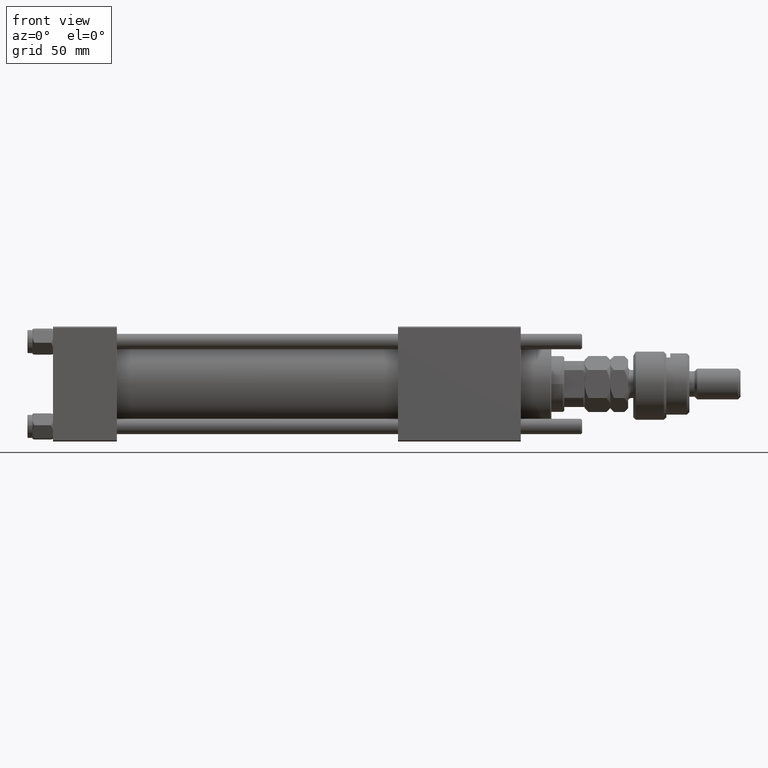
[diagram: clean part render]
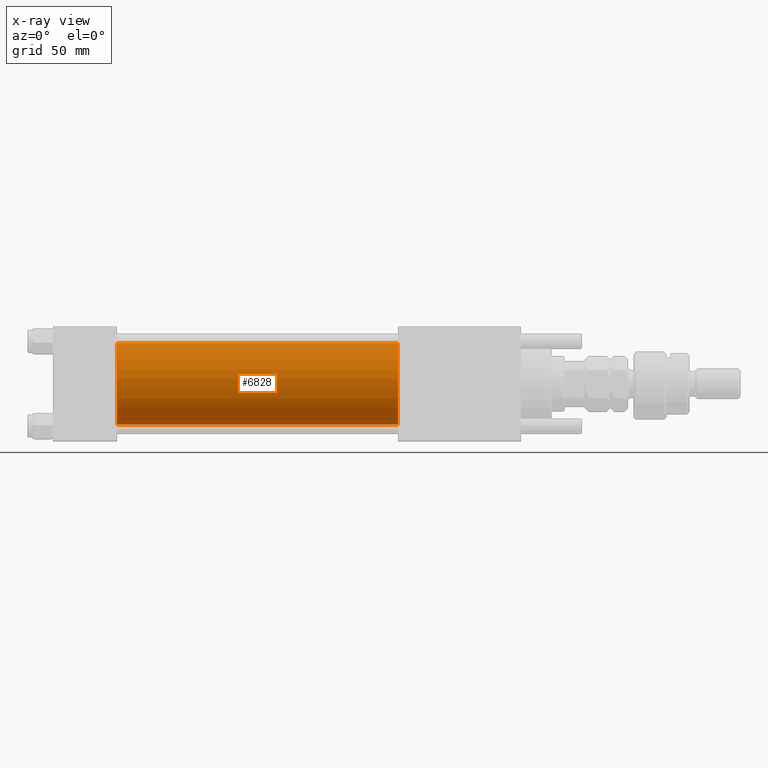
[diagram: x-ray — body ghosted, one internal face saturated and labeled with its STEP entity id]
A machine part, front view, then the same camera in x-ray: the body is ghosted and one INTERNAL B-rep face — a face not visible from any outside direction — is saturated and labeled: STEP entity #6828.
In plain terms, the highlighted cylindrical surface (partial cylindrical patch) has radius 16 mm, axis along (-1, -0, -0).
Its self-contained STEP definition (entity closure, byte-faithful):
#2209 = AXIS2_PLACEMENT_3D ( 'NONE', #55172, #53770, #35670 ) ;
#2289 = AXIS2_PLACEMENT_3D ( 'NONE', #56894, #6554, #28878 ) ;
#3612 = CARTESIAN_POINT ( 'NONE',  ( 25.00000000000000000, -2.602085213965210642E-15, 16.00000000000000000 ) ) ;
#5788 = LINE ( 'NONE', #19653, #50963 ) ;
#6011 = DIRECTION ( 'NONE',  ( 0.000000000000000000, 0.000000000000000000, 1.000000000000000000 ) ) ;
#6554 = DIRECTION ( 'NONE',  ( 1.000000000000000000, 0.000000000000000000, 0.000000000000000000 ) ) ;
#6828 = ADVANCED_FACE ( 'NONE', ( #19590 ), #43980, .F. ) ;
#11181 = DIRECTION ( 'NONE',  ( -1.000000000000000000, -0.000000000000000000, -0.000000000000000000 ) ) ;
#11493 = EDGE_LOOP ( 'NONE', ( #18176, #47231, #17699, #13474 ) ) ;
#11706 = CARTESIAN_POINT ( 'NONE',  ( 135.0000000000000000, -2.602085213965210642E-15, 0.000000000000000000 ) ) ;
#13474 = ORIENTED_EDGE ( 'NONE', *, *, #15254, .F. ) ;
#13657 = VERTEX_POINT ( 'NONE', #30421 ) ;
#14177 = CARTESIAN_POINT ( 'NONE',  ( 135.0000000000000000, -6.426503353294456087E-16, -16.00000000000000000 ) ) ;
#15254 = EDGE_CURVE ( 'NONE', #59424, #46335, #5788, .T. ) ;
#17699 = ORIENTED_EDGE ( 'NONE', *, *, #41600, .F. ) ;
#18176 = ORIENTED_EDGE ( 'NONE', *, *, #48951, .T. ) ;
#19590 = FACE_OUTER_BOUND ( 'NONE', #11493, .T. ) ;
#19653 = CARTESIAN_POINT ( 'NONE',  ( 135.0000000000000000, -2.602085213965210642E-15, 16.00000000000000000 ) ) ;
#25282 = CARTESIAN_POINT ( 'NONE',  ( 25.00000000000000000, -6.426503353294456087E-16, -16.00000000000000000 ) ) ;
#25417 = VECTOR ( 'NONE', #36501, 1000.000000000000000 ) ;
#28878 = DIRECTION ( 'NONE',  ( 0.000000000000000000, 0.000000000000000000, -1.000000000000000000 ) ) ;
#30421 = CARTESIAN_POINT ( 'NONE',  ( 135.0000000000000000, -6.426503353294456087E-16, -16.00000000000000000 ) ) ;
#30591 = CARTESIAN_POINT ( 'NONE',  ( 135.0000000000000000, -2.602085213965210642E-15, 16.00000000000000000 ) ) ;
#34908 = CIRCLE ( 'NONE', #2209, 16.00000000000000000 ) ;
#35670 = DIRECTION ( 'NONE',  ( 0.000000000000000000, 0.000000000000000000, -1.000000000000000000 ) ) ;
#36501 = DIRECTION ( 'NONE',  ( -1.000000000000000000, -0.000000000000000000, -0.000000000000000000 ) ) ;
#40718 = LINE ( 'NONE', #14177, #25417 ) ;
#41192 = AXIS2_PLACEMENT_3D ( 'NONE', #11706, #47311, #6011 ) ;
#41600 = EDGE_CURVE ( 'NONE', #46335, #53110, #34908, .T. ) ;
#43651 = CIRCLE ( 'NONE', #2289, 16.00000000000000000 ) ;
#43980 = CYLINDRICAL_SURFACE ( 'NONE', #41192, 16.00000000000000000 ) ;
#45539 = EDGE_CURVE ( 'NONE', #13657, #53110, #40718, .T. ) ;
#46335 = VERTEX_POINT ( 'NONE', #3612 ) ;
#47231 = ORIENTED_EDGE ( 'NONE', *, *, #45539, .T. ) ;
#47311 = DIRECTION ( 'NONE',  ( -1.000000000000000000, -0.000000000000000000, -0.000000000000000000 ) ) ;
#48951 = EDGE_CURVE ( 'NONE', #59424, #13657, #43651, .T. ) ;
#50963 = VECTOR ( 'NONE', #11181, 1000.000000000000000 ) ;
#53110 = VERTEX_POINT ( 'NONE', #25282 ) ;
#53770 = DIRECTION ( 'NONE',  ( 1.000000000000000000, 0.000000000000000000, 0.000000000000000000 ) ) ;
#55172 = CARTESIAN_POINT ( 'NONE',  ( 25.00000000000000000, -2.602085213965210642E-15, 0.000000000000000000 ) ) ;
#56894 = CARTESIAN_POINT ( 'NONE',  ( 135.0000000000000000, -2.602085213965210642E-15, 0.000000000000000000 ) ) ;
#59424 = VERTEX_POINT ( 'NONE', #30591 ) ;